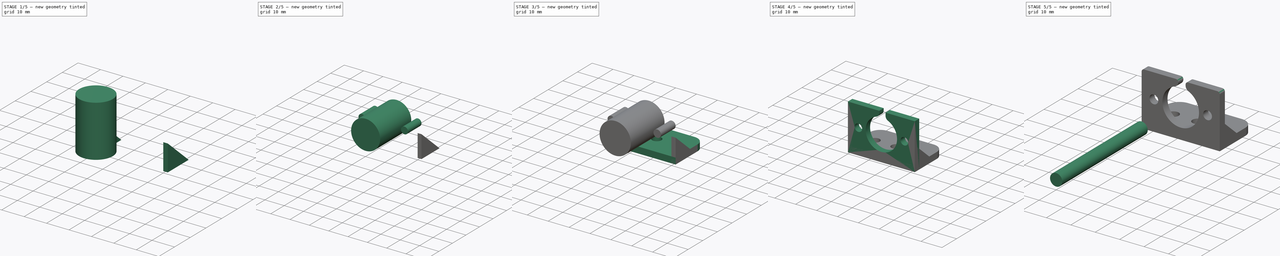
[diagram: build sequence overview — one tinted view per stage of 5, left to right]
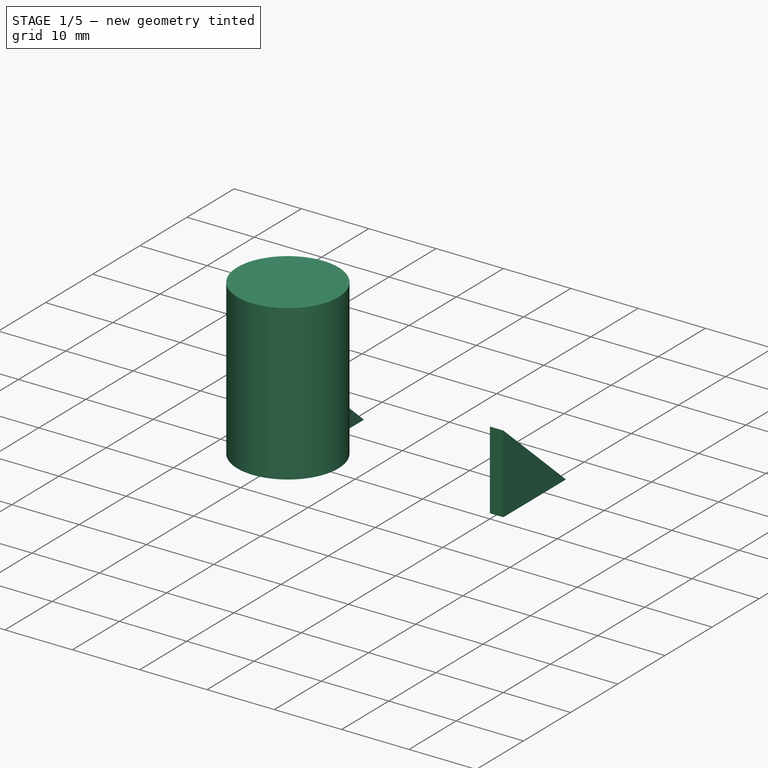
[diagram: stage 1 of 5 — iso view after this stage's code; geometry added in this stage tinted green]
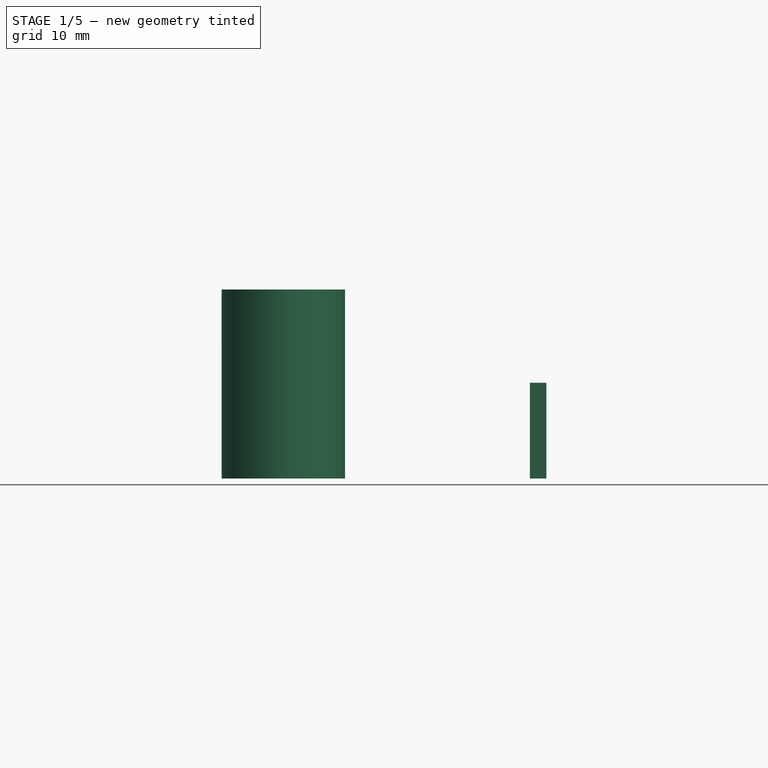
[diagram: stage 1 of 5 — front view after this stage's code; geometry added in this stage tinted green]
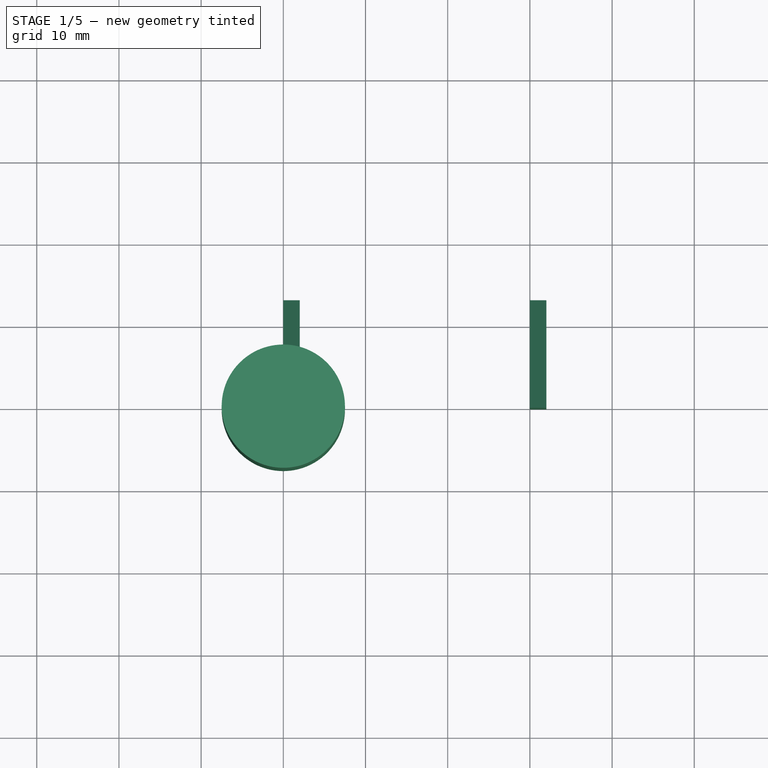
[diagram: stage 1 of 5 — top view after this stage's code; geometry added in this stage tinted green]
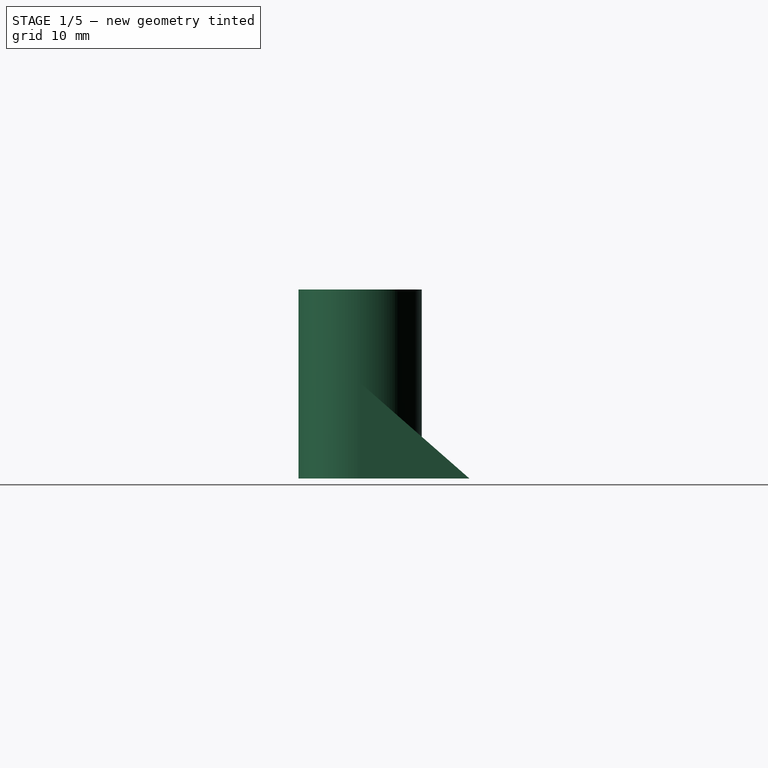
[diagram: stage 1 of 5 — right view after this stage's code; geometry added in this stage tinted green]
FCSTD DOCUMENT  (FreeCAD 0.19R)
Label: tape_recorder_socket_holder
License: All rights reserved
LicenseURL: http://en.wikipedia.org/wiki/All_rights_reserved
objects: Part::Cylinder×4, Part::Box×3, Part::FeaturePython×3, PartDesign::Body×3, Part::MultiFuse×3, Part::Fillet×3, PartDesign::FeatureBase×2, Part::Cut×2, Sketcher::SketchObject×1, PartDesign::Pad×1, App::Part×1
note: 24 computed .brp shape members not serialized (recipe doc carries the construction recipe); baked Part::Feature solids carry a one-line shape summary decoded from their .brp

FEATURE [PartDesign::Body] Body004  label="led hole clone body"
  BaseFeature = -> Cylinder009
  Group = -> [Clone004]
  Origin = -> Origin015
  Placement = pos=(9,16,6) rot=(0,0,1;0rad)
  Tip = -> Clone004
FEATURE [Part::Cylinder] Cylinder007
  Angle = 360
  AttacherType = Attacher::AttachEngine3D
  Height = 23
  Radius = 7.5
FEATURE [Part::Box] Box  label="vertical wall cube"
  AttacherType = Attacher::AttachEngine3D
  Height = 22
  Length = 32
  Width = 3
FEATURE [Sketcher::SketchObject] Sketch
  FullyConstrained = false
  MapMode = 5
  Placement = pos=(0,0,0) rot=(0.57735,0.57735,0.57735;2.0944rad)
  Support = -> [YZ_Plane017]
  sketch-geometry (3):
    g0: LineSegment StartX=0 StartY=0 StartZ=0 EndX=0 EndY=11.6455 EndZ=0
    g1: LineSegment StartX=0 StartY=11.6455 StartZ=0 EndX=13.2923 EndY=0 EndZ=0
    g2: LineSegment StartX=13.2923 StartY=0 StartZ=0 EndX=0 EndY=0 EndZ=0
  constraints (6):
    c: Coincident(g0,g-1)
    c: PointOnObject(g0,g-2)
    c: Coincident(g1,g0)
    c: PointOnObject(g1,g-1)
    c: Coincident(g2,g1)
    c: Coincident(g2,g0)
FEATURE [PartDesign::Pad] Pad
  Direction = (1,1,1)
  Length = 2
  Length2 = 100
  Placement = pos=(0,0,0) rot=(0.57735,0.57735,0.57735;2.0944rad)
  Profile = -> Sketch
  Type = 0
FEATURE [PartDesign::Body] Body  label="side wall body"
  Group = -> [Sketch,Pad]
  Origin = -> Origin017
  Tip = -> Pad
FEATURE [Part::FeaturePython] Array007  label="side wall array"  # Draft array (typed FeaturePython)
  Angle = 360
  ArrayType = 0
  Axis = (0,0,1)
  Base = -> Body
  Center = (0,0,0)
  Count = 2
  ExpandArray = false
  Fuse = false
  IntervalAxis = (0,0,0)
  IntervalX = (30,0,0)
  IntervalY = (0,100,0)
  IntervalZ = (0,0,100)
  NumberCircles = 3
  NumberPolar = 5
  NumberX = 2
  NumberY = 1
  NumberZ = 1
  PlacementList = 2 placements: [(0,0,0),(30,0,0)]
  RadialDistance = 50
  ScaleList = (2) [(1,1,1),(1,1,1)]
  Symmetry = 1
  TangentialDistance = 25
  expr: .IntervalX.x = <<vertical wall cube>>.Length - Pad.Length
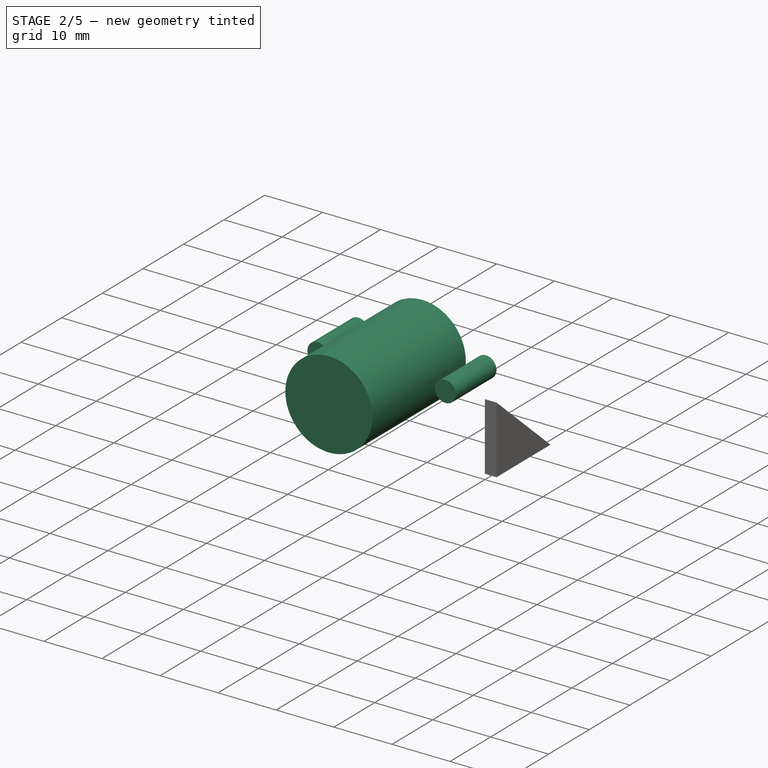
[diagram: stage 2 of 5 — iso view after this stage's code; geometry added in this stage tinted green]
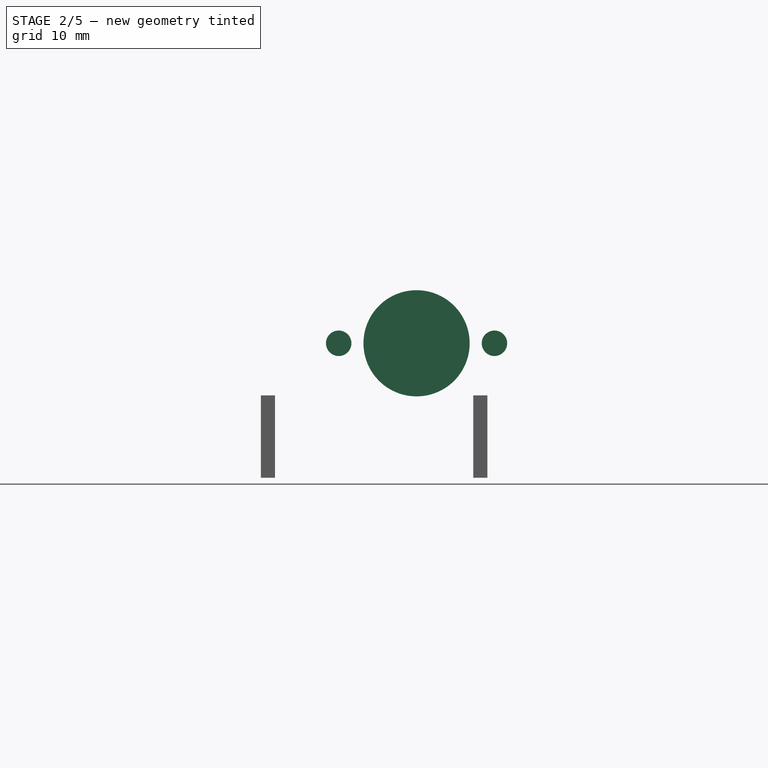
[diagram: stage 2 of 5 — front view after this stage's code; geometry added in this stage tinted green]
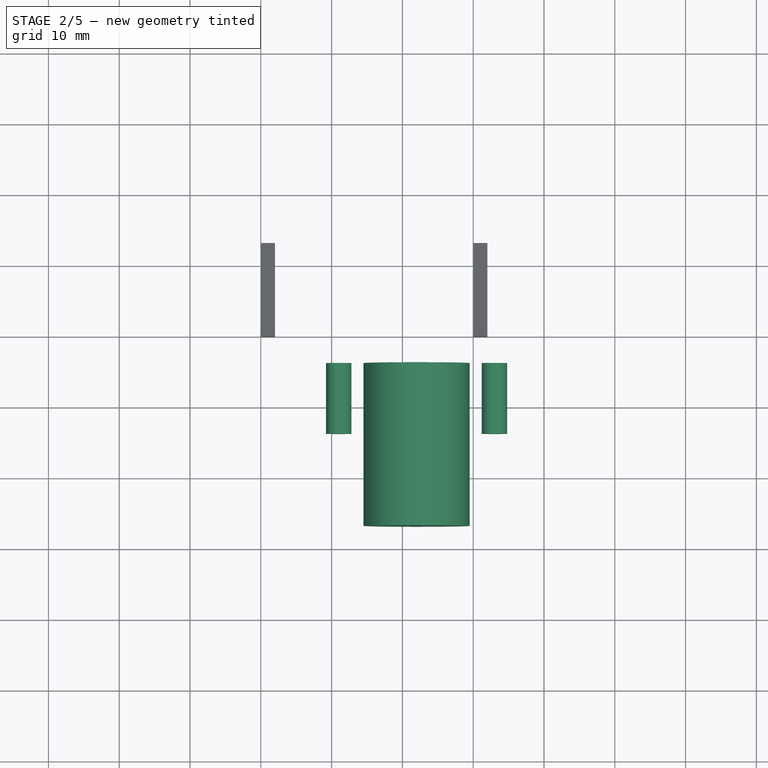
[diagram: stage 2 of 5 — top view after this stage's code; geometry added in this stage tinted green]
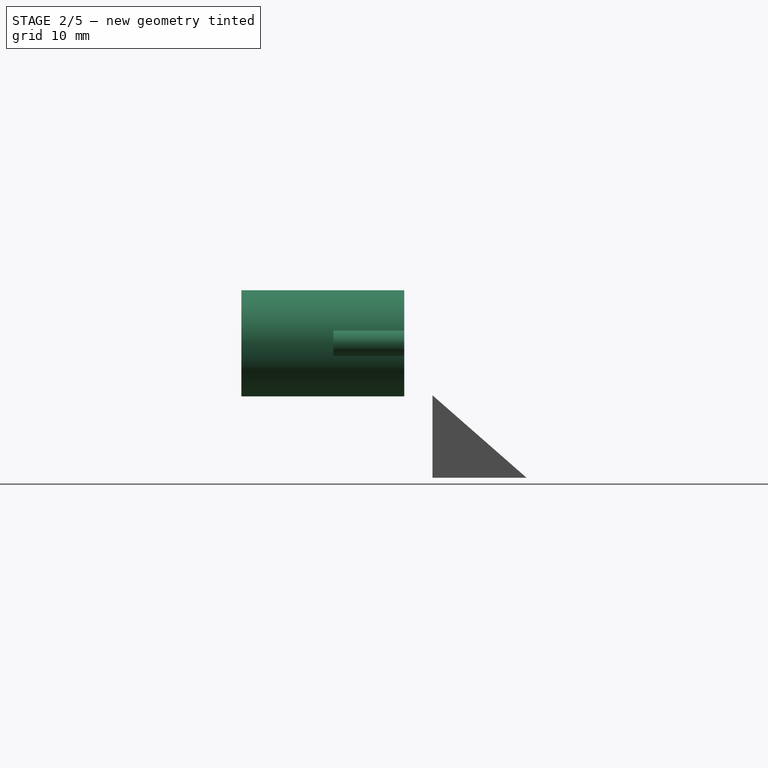
[diagram: stage 2 of 5 — right view after this stage's code; geometry added in this stage tinted green]
FEATURE [Part::Cylinder] Cylinder008
  Angle = 360
  AttacherType = Attacher::AttachEngine3D
  Height = 10
  Placement = pos=(-11,0,0) rot=(0,0,1;0rad)
  Radius = 1.8
FEATURE [Part::FeaturePython] Array006  # Draft array (typed FeaturePython)
  Angle = 360
  ArrayType = 0
  Axis = (0,0,1)
  Base = -> Cylinder008
  Center = (0,0,0)
  Fuse = false
  IntervalAxis = (0,0,0)
  IntervalX = (22,0,0)
  IntervalY = (0,1,0)
  IntervalZ = (0,0,1)
  NumberPolar = 1
  NumberX = 2
  NumberY = 0
  NumberZ = 1
FEATURE [Part::MultiFuse] Fusion004  label="tape recorder socket mockup"
  Shapes = -> [Cylinder007,Array006]
FEATURE [PartDesign::FeatureBase] Clone003  label="tape recorder socket clone"
  BaseFeature = -> Fusion004
  Placement = pos=(22,-4,19) rot=(1,0,0;1.5708rad)
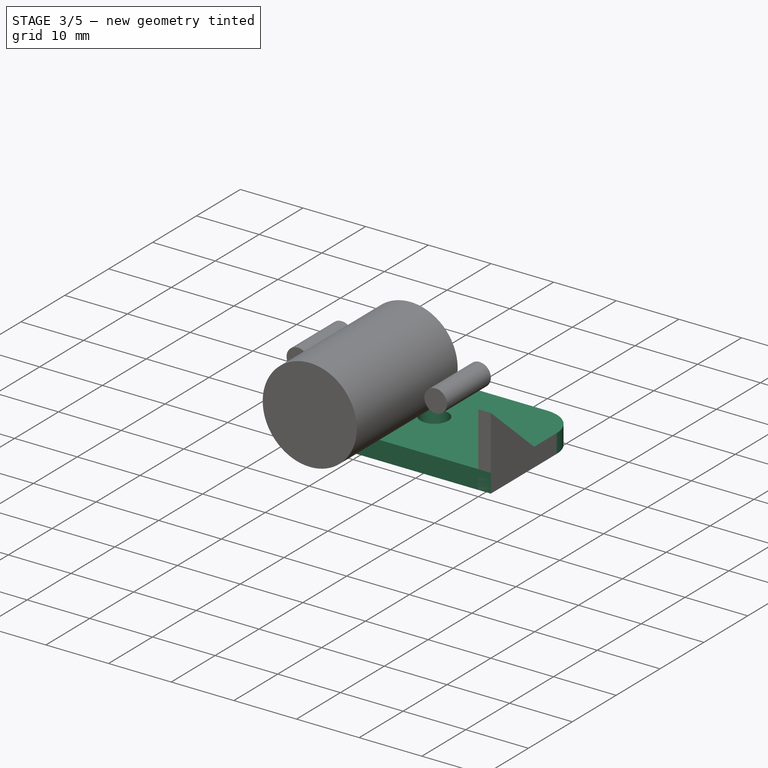
[diagram: stage 3 of 5 — iso view after this stage's code; geometry added in this stage tinted green]
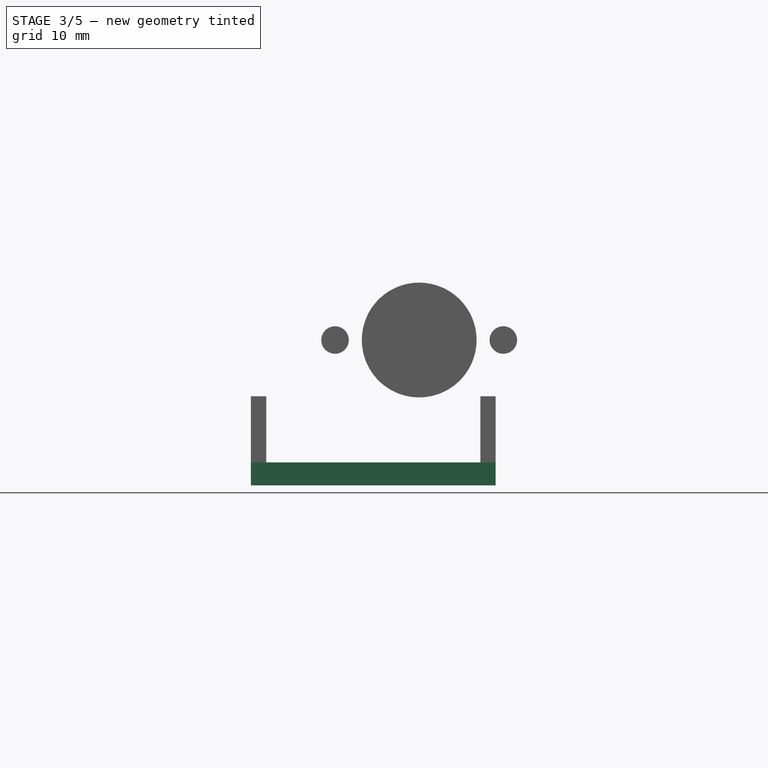
[diagram: stage 3 of 5 — front view after this stage's code; geometry added in this stage tinted green]
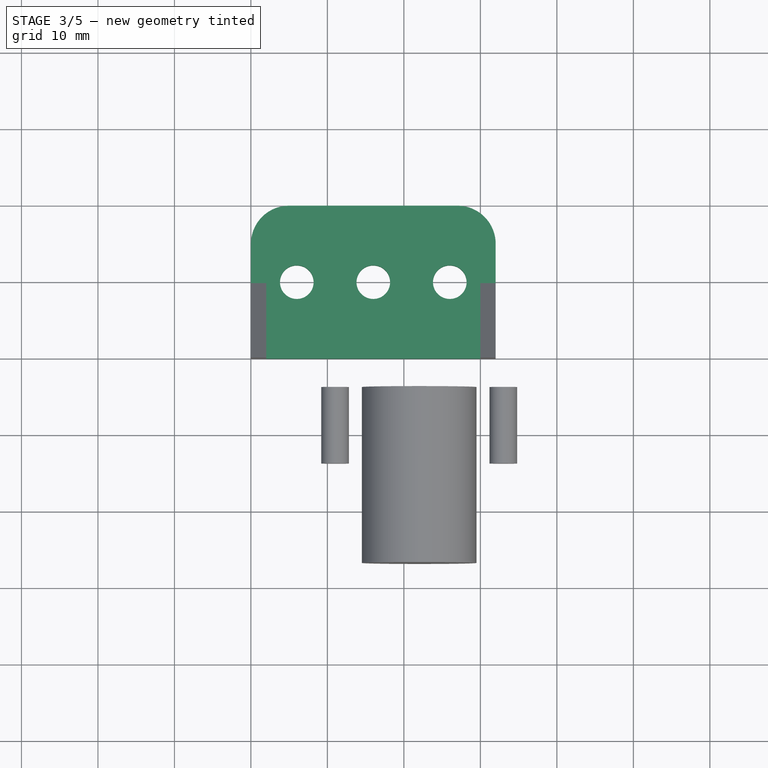
[diagram: stage 3 of 5 — top view after this stage's code; geometry added in this stage tinted green]
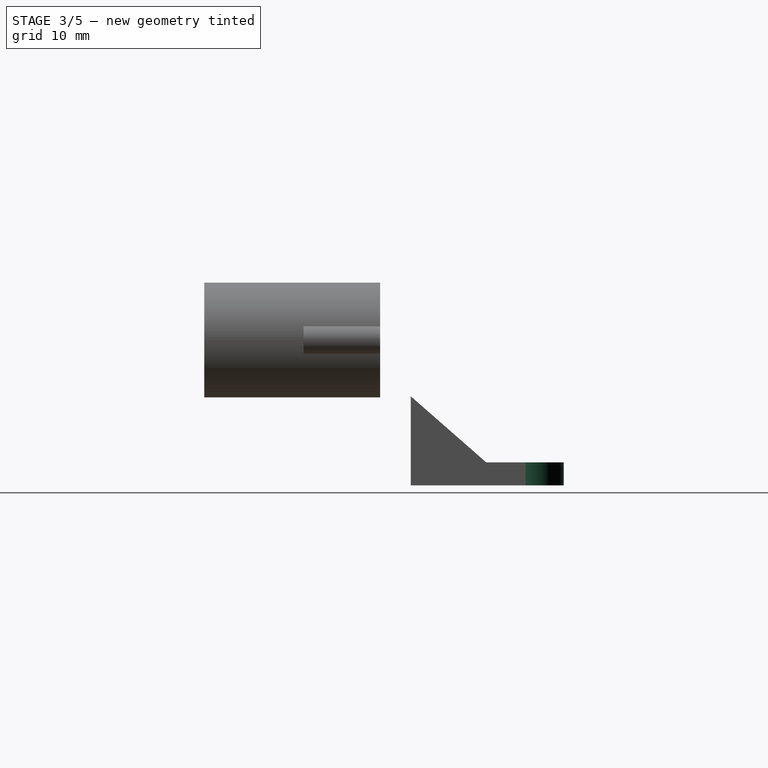
[diagram: stage 3 of 5 — right view after this stage's code; geometry added in this stage tinted green]
FEATURE [Part::Box] Box023  label="horizontal wall cube"
  AttacherType = Attacher::AttachEngine3D
  Height = 3
  Length = 32
  Width = 20
  expr: Length = <<vertical wall cube>>.Length
FEATURE [Part::Fillet] Fillet003  label="bottom fillet"
  Base = -> Box023
  Edges = 2 edges r=5: [Edge3,Edge7]
FEATURE [Part::Cylinder] Cylinder  label="insert hole"
  Angle = 360
  AttacherType = Attacher::AttachEngine3D
  Height = 10
  Radius = 2.2
FEATURE [Part::FeaturePython] Array  label="insert hole array"  # Draft array (typed FeaturePython)
  Angle = 360
  ArrayType = 0
  Axis = (0,0,1)
  Base = -> Cylinder
  Center = (0,0,0)
  Count = 3
  ExpandArray = false
  Fuse = false
  IntervalAxis = (0,0,0)
  IntervalX = (10,0,0)
  IntervalY = (0,100,0)
  IntervalZ = (0,0,100)
  NumberCircles = 3
  NumberPolar = 5
  NumberX = 3
  NumberY = 1
  NumberZ = 1
  Placement = pos=(6,10,0) rot=(0,0,1;0rad)
  PlacementList = 3 placements: arithmetic series from (0,0,0) step (10,0,0) to (20,0,0)
  RadialDistance = 50
  ScaleList = (3) [(1,1,1),(1,1,1),(1,1,1)]
  Symmetry = 1
  TangentialDistance = 25
  expr: .Placement.Base.y = <<horizontal wall cube>>.Width / 2
  expr: .Placement.Base.x = (<<vertical wall cube>>.Length - (NumberX - 1) * .IntervalX.x) / 2
FEATURE [Part::Cut] Cut001  label="bottom cut"
  Base = -> Fillet003
  Tool = -> Array
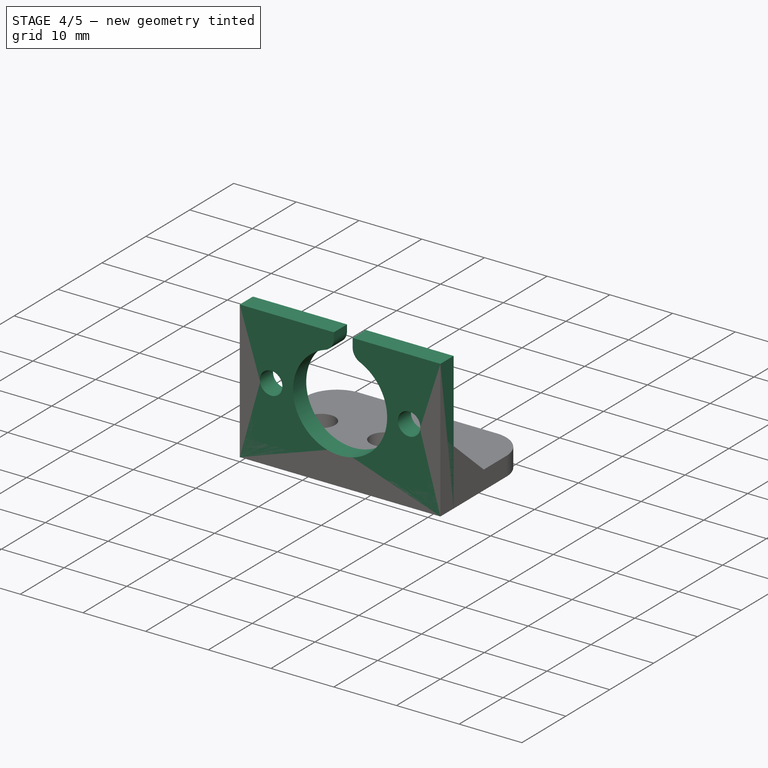
[diagram: stage 4 of 5 — iso view after this stage's code; geometry added in this stage tinted green]
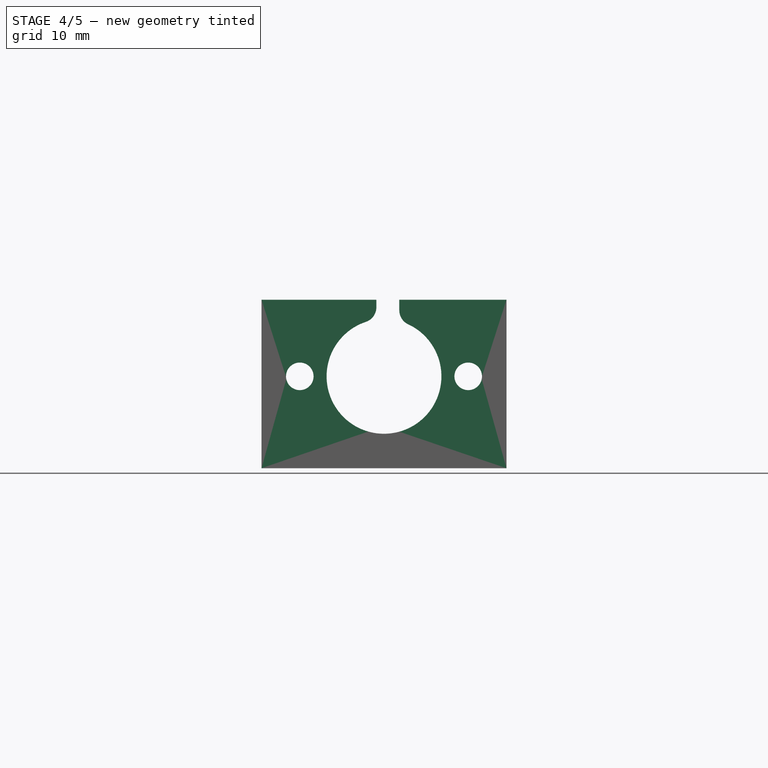
[diagram: stage 4 of 5 — front view after this stage's code; geometry added in this stage tinted green]
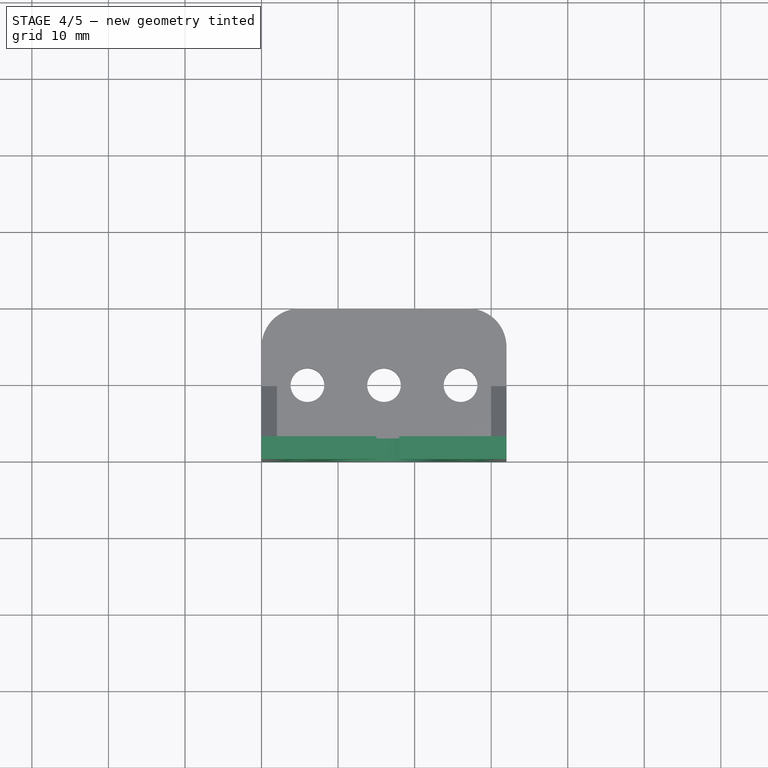
[diagram: stage 4 of 5 — top view after this stage's code; geometry added in this stage tinted green]
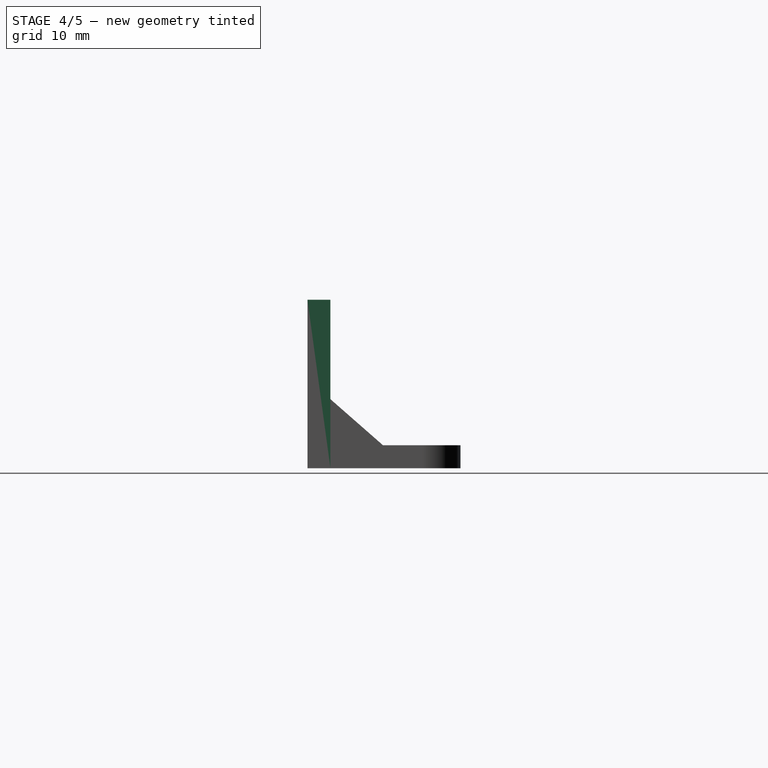
[diagram: stage 4 of 5 — right view after this stage's code; geometry added in this stage tinted green]
FEATURE [Part::Box] Box022  label="cut for wires cube"
  AttacherType = Attacher::AttachEngine3D
  Height = 10
  Length = 3
  Placement = pos=(20,-16,23.5) rot=(0,0,1;0rad)
  Width = 10
FEATURE [PartDesign::Body] Clone003Body
  BaseFeature = -> Fusion004
  Group = -> [Clone003]
  Origin = -> Origin016
  Tip = -> Clone003
FEATURE [Part::MultiFuse] Fusion005
  Shapes = -> [Clone003Body,Box022]
FEATURE [Part::Fillet] Fillet002  label="tape recorder socket hole fillet"
  Base = -> Fusion005
  Edges = 2 edges r=2: [Edge4,Edge15]
  Placement = pos=(38,-9,-7) rot=(0,0,1;3.14159rad)
FEATURE [Part::Cut] Cut  label="vertical wall cut"
  Base = -> Box
  Tool = -> Fillet002
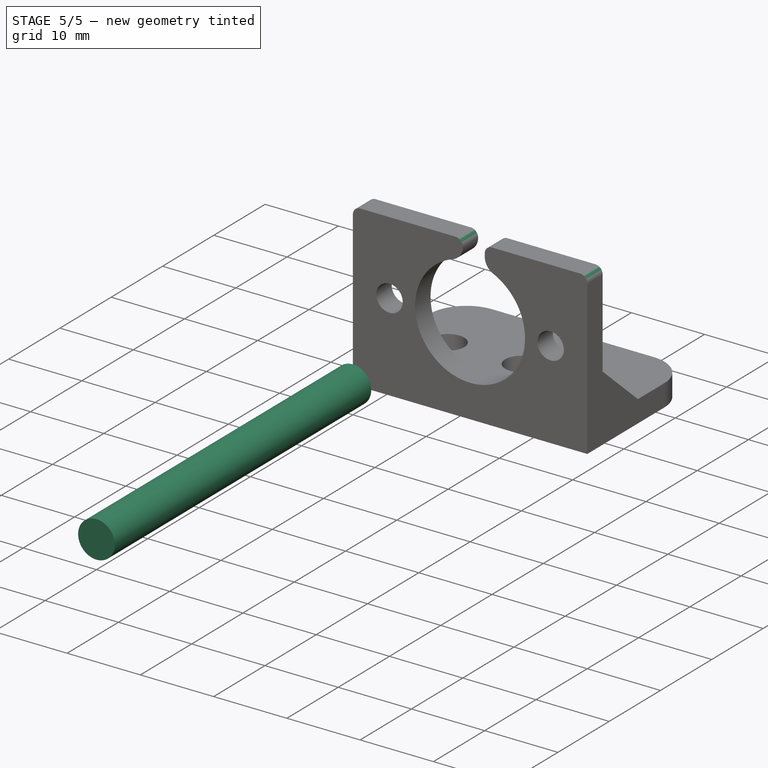
[diagram: stage 5 of 5 — iso view after this stage's code; geometry added in this stage tinted green]
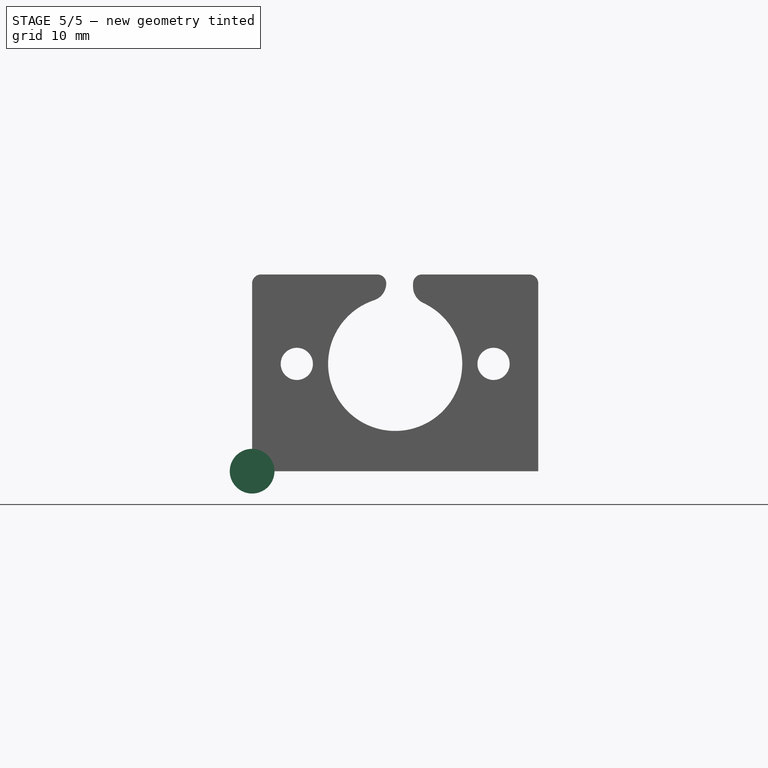
[diagram: stage 5 of 5 — front view after this stage's code; geometry added in this stage tinted green]
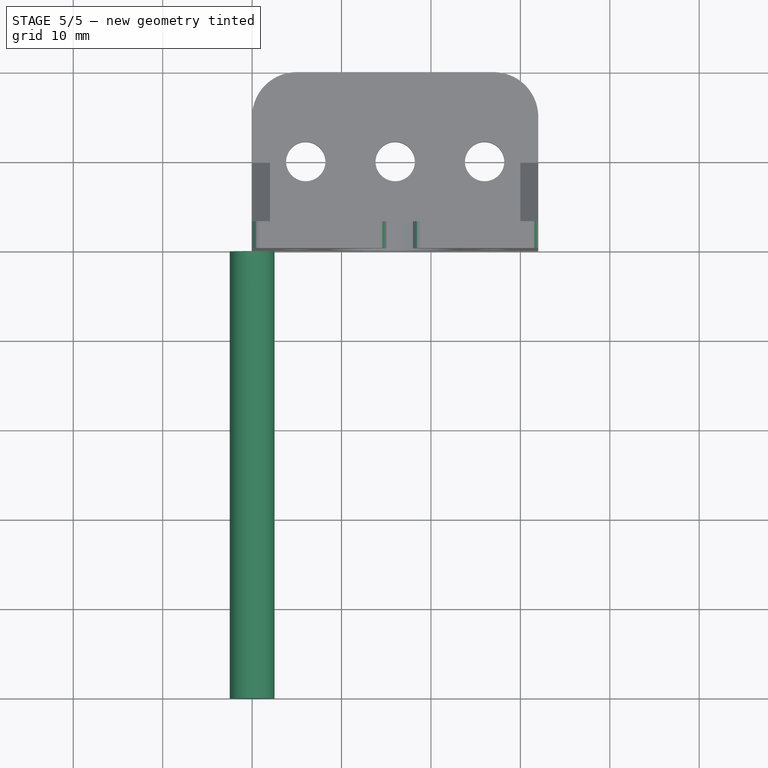
[diagram: stage 5 of 5 — top view after this stage's code; geometry added in this stage tinted green]
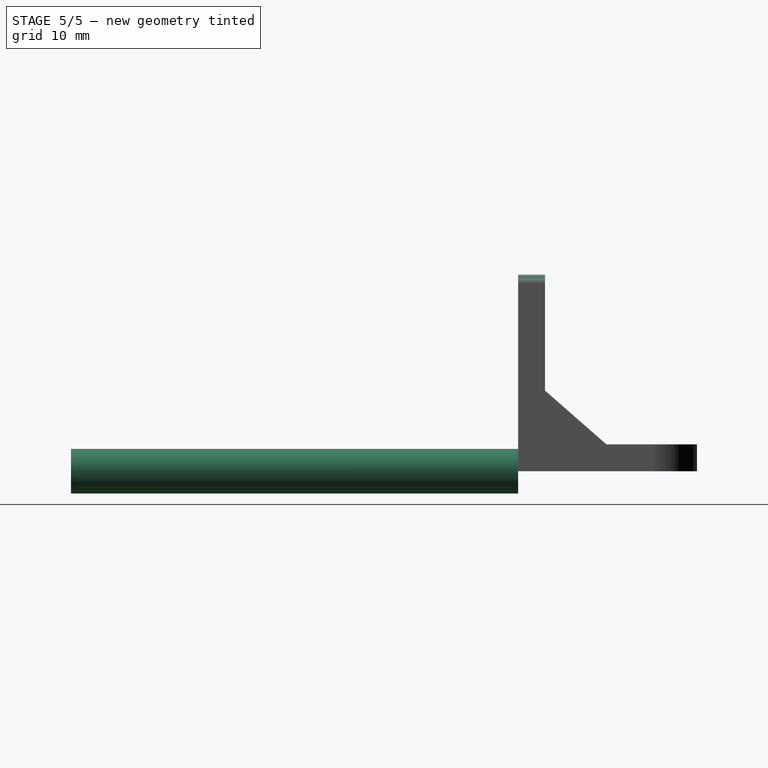
[diagram: stage 5 of 5 — right view after this stage's code; geometry added in this stage tinted green]
FEATURE [Part::Cylinder] Cylinder009  label="led hole"
  Angle = 360
  AttacherType = Attacher::AttachEngine3D
  Height = 50
  Placement = pos=(0,0,0) rot=(1,0,0;1.5708rad)
  Radius = 2.5
FEATURE [PartDesign::FeatureBase] Clone004
  BaseFeature = -> Cylinder009
  Placement = pos=(0,0,0) rot=(1,0,0;1.5708rad)
FEATURE [Part::Fillet] Fillet  label="vertical wall fillet"
  Base = -> Cut
  Edges = 4 edges r=1: [Edge2,Edge18,Edge31,Edge32]
FEATURE [Part::MultiFuse] Fusion  label="body fusion"
  Shapes = -> [Fillet,Cut001,Array007]
FEATURE [App::Part] Part  label="tape recorder socket holder part"
  Group = -> [Fusion,Clone003Body,Array,Box,Fillet,Fusion005,Fillet002,Box022,Cut,Box023,Cut001,Fillet003,Cylinder]
  Origin = -> Origin
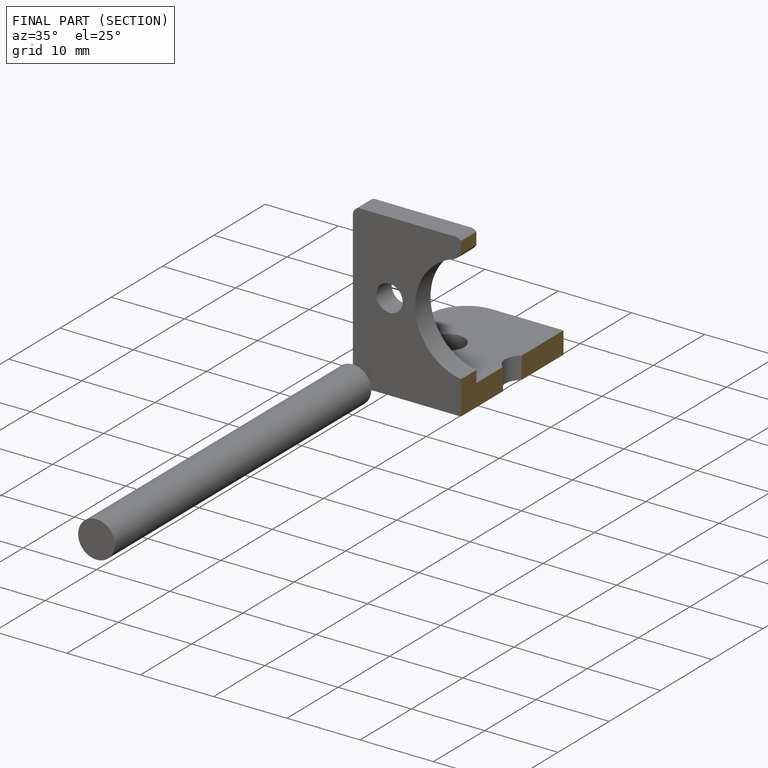
[diagram: finished part — half-section view (interior)]
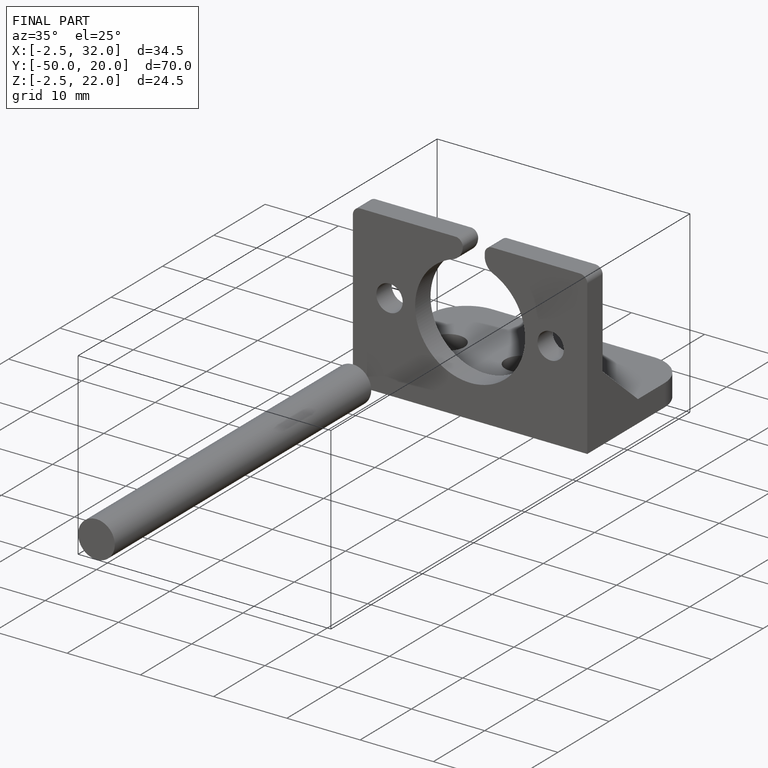
[diagram: finished part — iso view with bounding-box wireframe]
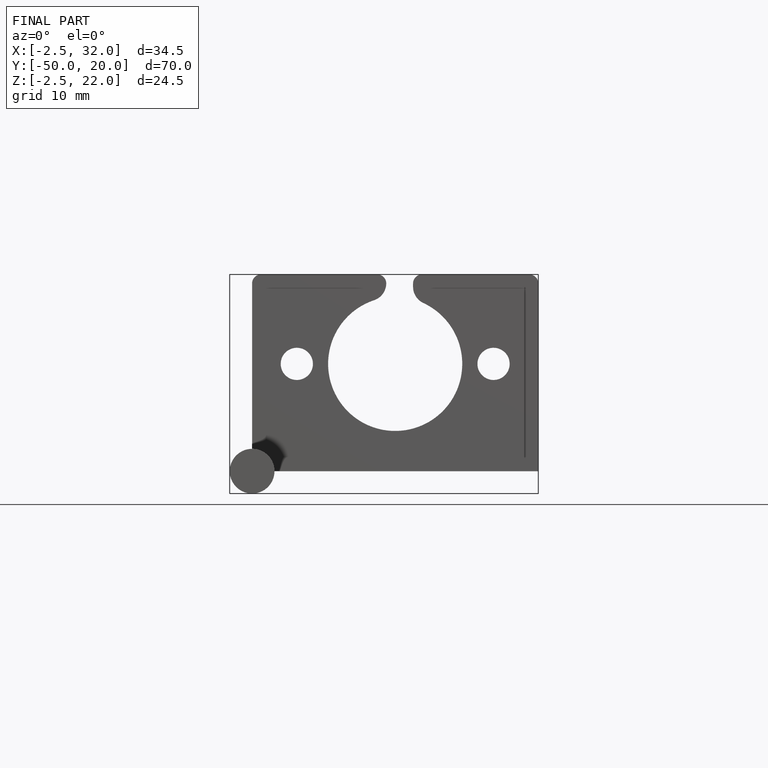
[diagram: finished part — front view with bounding-box wireframe]
